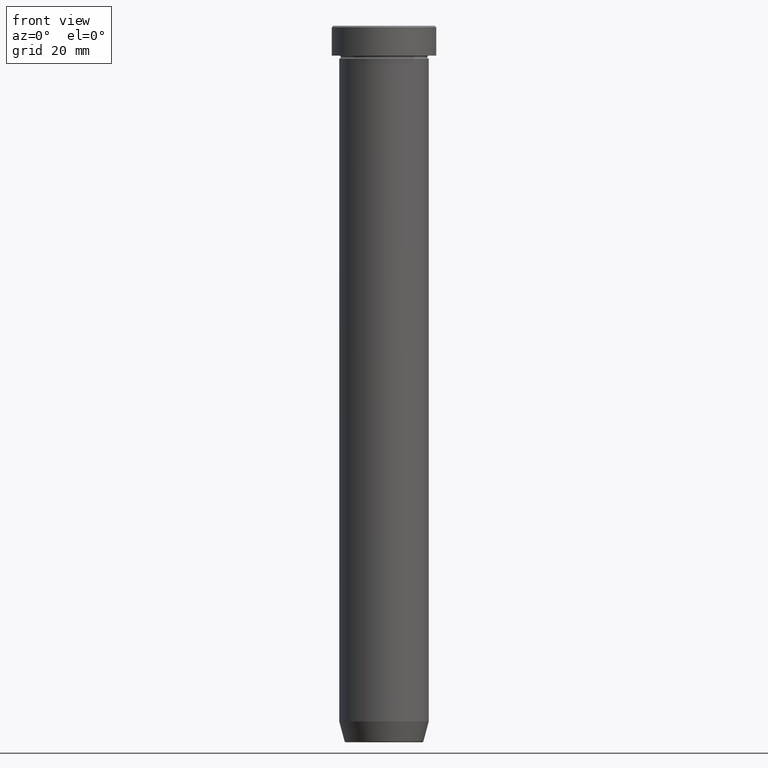
[diagram: clean part render]
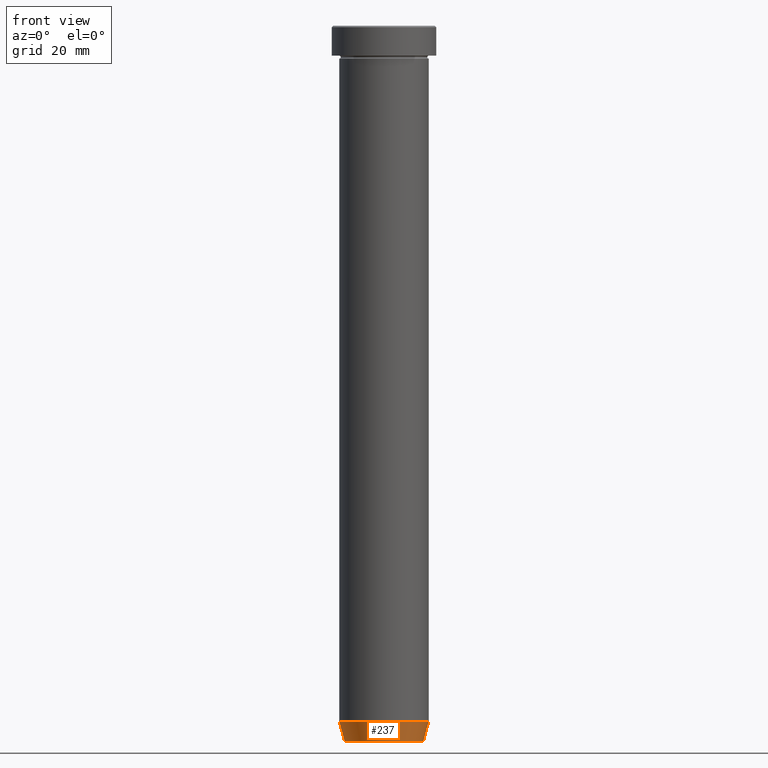
[diagram: same view with one face highlighted and labeled with its STEP entity id]
A machine part, front view. The second image highlights one B-rep face of the part: STEP entity #237.
In plain terms, the highlighted conical surface has half-angle 15 deg.
Its self-contained STEP definition (entity closure, byte-faithful):
#13 = ORIENTED_EDGE ( 'NONE', *, *, #283, .F. ) ;
#30 = VECTOR ( 'NONE', #268, 1000.000000000000114 ) ;
#34 = DIRECTION ( 'NONE',  ( -0.000000000000000000, -0.000000000000000000, 1.000000000000000000 ) ) ;
#44 = LINE ( 'NONE', #221, #441 ) ;
#57 = ORIENTED_EDGE ( 'NONE', *, *, #302, .T. ) ;
#67 = CIRCLE ( 'NONE', #392, 13.22365507213720370 ) ;
#79 = DIRECTION ( 'NONE',  ( -0.000000000000000000, -0.000000000000000000, 1.000000000000000000 ) ) ;
#80 = CARTESIAN_POINT ( 'NONE',  ( 15.00000000000000178, 0.000000000000000000, -232.9999999999999716 ) ) ;
#86 = CARTESIAN_POINT ( 'NONE',  ( -13.22365507213720370, 1.728200442216589569E-15, -239.6294095225512422 ) ) ;
#126 = DIRECTION ( 'NONE',  ( -0.2588190451025206840, 3.169619151431763092E-17, 0.9659258262890683122 ) ) ;
#127 = EDGE_CURVE ( 'NONE', #209, #557, #67, .T. ) ;
#158 = EDGE_CURVE ( 'NONE', #430, #583, #279, .T. ) ;
#185 = DIRECTION ( 'NONE',  ( 1.000000000000000000, 0.000000000000000000, 0.000000000000000000 ) ) ;
#196 = CARTESIAN_POINT ( 'NONE',  ( 0.000000000000000000, 0.000000000000000000, -239.6294095225512422 ) ) ;
#203 = ORIENTED_EDGE ( 'NONE', *, *, #158, .F. ) ;
#207 = ORIENTED_EDGE ( 'NONE', *, *, #127, .T. ) ;
#209 = VERTEX_POINT ( 'NONE', #86 ) ;
#211 = CARTESIAN_POINT ( 'NONE',  ( 0.000000000000000000, 0.000000000000000000, -240.0000000000000000 ) ) ;
#221 = CARTESIAN_POINT ( 'NONE',  ( -13.12435565298214080, 1.607270014129604977E-15, -240.0000000000000000 ) ) ;
#229 = CARTESIAN_POINT ( 'NONE',  ( 13.22365507213720370, 0.000000000000000000, -239.6294095225512422 ) ) ;
#237 = ADVANCED_FACE ( 'NONE', ( #255 ), #497, .T. ) ;
#250 = DIRECTION ( 'NONE',  ( 1.000000000000000000, 0.000000000000000000, 0.000000000000000000 ) ) ;
#255 = FACE_OUTER_BOUND ( 'NONE', #599, .T. ) ;
#268 = DIRECTION ( 'NONE',  ( 0.2588190451025206840, 0.000000000000000000, 0.9659258262890683122 ) ) ;
#279 = CIRCLE ( 'NONE', #562, 15.00000000000000178 ) ;
#283 = EDGE_CURVE ( 'NONE', #209, #430, #44, .T. ) ;
#302 = EDGE_CURVE ( 'NONE', #557, #583, #314, .T. ) ;
#314 = LINE ( 'NONE', #495, #30 ) ;
#361 = CARTESIAN_POINT ( 'NONE',  ( 0.000000000000000000, 0.000000000000000000, -232.9999999999999716 ) ) ;
#362 = AXIS2_PLACEMENT_3D ( 'NONE', #211, #34, #250 ) ;
#378 = DIRECTION ( 'NONE',  ( -0.000000000000000000, -0.000000000000000000, 1.000000000000000000 ) ) ;
#392 = AXIS2_PLACEMENT_3D ( 'NONE', #196, #378, #566 ) ;
#430 = VERTEX_POINT ( 'NONE', #556 ) ;
#441 = VECTOR ( 'NONE', #126, 1000.000000000000114 ) ;
#495 = CARTESIAN_POINT ( 'NONE',  ( 13.12435565298214080, 0.000000000000000000, -240.0000000000000000 ) ) ;
#497 = CONICAL_SURFACE ( 'NONE', #362, 13.12435565298214080, 0.2617993877991493523 ) ;
#556 = CARTESIAN_POINT ( 'NONE',  ( -15.00000000000000355, 1.836970198721029983E-15, -232.9999999999999716 ) ) ;
#557 = VERTEX_POINT ( 'NONE', #229 ) ;
#562 = AXIS2_PLACEMENT_3D ( 'NONE', #361, #79, #185 ) ;
#566 = DIRECTION ( 'NONE',  ( -1.000000000000000000, 0.000000000000000000, 0.000000000000000000 ) ) ;
#583 = VERTEX_POINT ( 'NONE', #80 ) ;
#599 = EDGE_LOOP ( 'NONE', ( #13, #207, #57, #203 ) ) ;